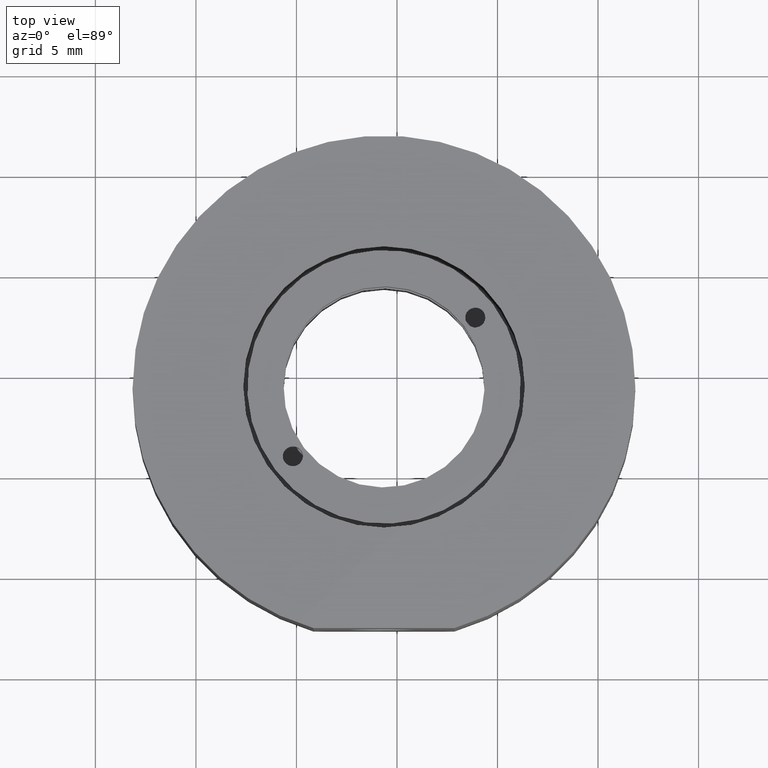
[diagram: clean part render]
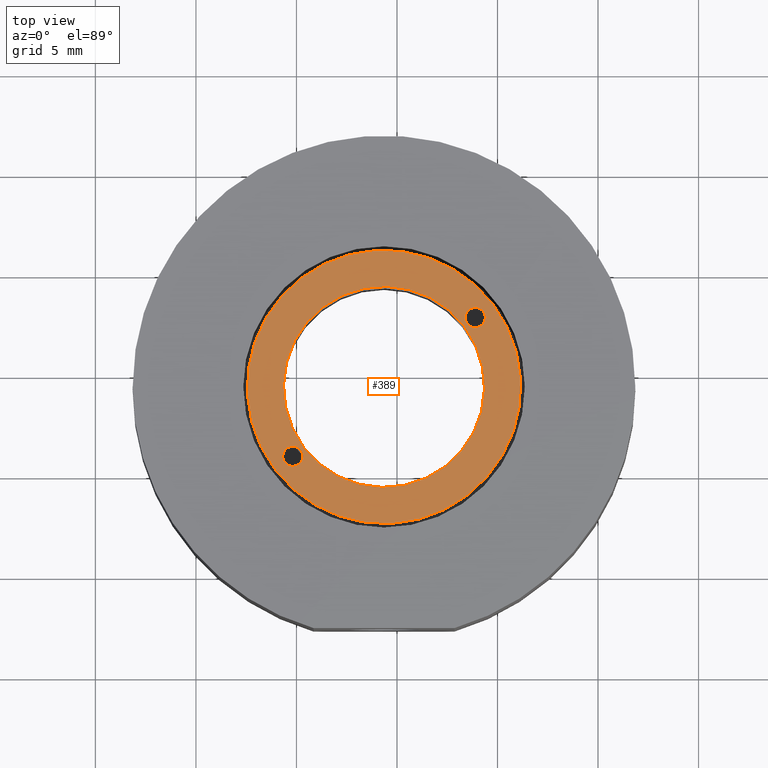
[diagram: same view with one face highlighted and labeled with its STEP entity id]
A machine part, top view. The second image highlights one B-rep face of the part: STEP entity #389.
In plain terms, the highlighted planar face has unit normal (0, 0, 1).
Its self-contained STEP definition (entity closure, byte-faithful):
#50 = EDGE_LOOP ( 'NONE', ( #513, #487 ) ) ;
#65 = EDGE_LOOP ( 'NONE', ( #182, #904 ) ) ;
#69 = DIRECTION ( 'NONE',  ( 0.0000000000000000000, 0.0000000000000000000, 1.000000000000000000 ) ) ;
#70 = AXIS2_PLACEMENT_3D ( 'NONE', #908, #151, #681 ) ;
#72 = DIRECTION ( 'NONE',  ( 0.0000000000000000000, 0.0000000000000000000, 1.000000000000000000 ) ) ;
#94 = CIRCLE ( 'NONE', #934, 5.000000000000012400 ) ;
#97 = VERTEX_POINT ( 'NONE', #198 ) ;
#136 = VERTEX_POINT ( 'NONE', #817 ) ;
#137 = VERTEX_POINT ( 'NONE', #514 ) ;
#144 = VERTEX_POINT ( 'NONE', #275 ) ;
#151 = DIRECTION ( 'NONE',  ( 0.0000000000000000000, 0.0000000000000000000, 1.000000000000000000 ) ) ;
#167 = CARTESIAN_POINT ( 'NONE',  ( -5.232985236543902000, 8.506333873004090100, 2.500000000000000400 ) ) ;
#179 = FACE_OUTER_BOUND ( 'NONE', #713, .T. ) ;
#182 = ORIENTED_EDGE ( 'NONE', *, *, #355, .F. ) ;
#198 = CARTESIAN_POINT ( 'NONE',  ( -14.78439415107425400, 1.241997169117729400, 2.500000000000000400 ) ) ;
#231 = DIRECTION ( 'NONE',  ( -0.7959507428775284300, -0.6053613919905287400, 0.0000000000000000000 ) ) ;
#256 = EDGE_CURVE ( 'NONE', #636, #144, #867, .T. ) ;
#270 = ORIENTED_EDGE ( 'NONE', *, *, #570, .T. ) ;
#272 = ORIENTED_EDGE ( 'NONE', *, *, #256, .T. ) ;
#275 = CARTESIAN_POINT ( 'NONE',  ( -16.05791533967828500, 0.2734189419328972300, 2.500000000000000400 ) ) ;
#278 = EDGE_CURVE ( 'NONE', #136, #97, #710, .T. ) ;
#290 = CARTESIAN_POINT ( 'NONE',  ( -6.108531053709175000, 7.840436341814509500, 2.500000000000000400 ) ) ;
#294 = DIRECTION ( 'NONE',  ( 0.0000000000000000000, 0.0000000000000000000, 1.000000000000000000 ) ) ;
#347 = CARTESIAN_POINT ( 'NONE',  ( -6.665696573723453300, 7.416683367421138800, 2.500000000000000400 ) ) ;
#349 = ORIENTED_EDGE ( 'NONE', *, *, #278, .F. ) ;
#355 = EDGE_CURVE ( 'NONE', #870, #137, #587, .T. ) ;
#367 = FACE_BOUND ( 'NONE', #50, .T. ) ;
#389 = ADVANCED_FACE ( 'NONE', ( #367, #509, #179, #608 ), #628, .T. ) ;
#402 = EDGE_CURVE ( 'NONE', #476, #727, #810, .T. ) ;
#406 = CIRCLE ( 'NONE', #70, 6.800000000000017600 ) ;
#462 = AXIS2_PLACEMENT_3D ( 'NONE', #679, #536, #231 ) ;
#467 = CARTESIAN_POINT ( 'NONE',  ( -6.108531053709175000, 7.840436341814509500, 2.500000000000000400 ) ) ;
#468 = DIRECTION ( 'NONE',  ( 0.0000000000000000000, 0.0000000000000000000, 1.000000000000000000 ) ) ;
#472 = DIRECTION ( 'NONE',  ( 0.7959507428775279800, 0.6053613919905293000, 0.0000000000000000000 ) ) ;
#476 = VERTEX_POINT ( 'NONE', #619 ) ;
#481 = EDGE_CURVE ( 'NONE', #97, #136, #902, .T. ) ;
#487 = ORIENTED_EDGE ( 'NONE', *, *, #402, .F. ) ;
#495 = CIRCLE ( 'NONE', #848, 0.5000000000000026600 ) ;
#502 = ORIENTED_EDGE ( 'NONE', *, *, #481, .F. ) ;
#505 = AXIS2_PLACEMENT_3D ( 'NONE', #540, #72, #903 ) ;
#509 = FACE_BOUND ( 'NONE', #699, .T. ) ;
#513 = ORIENTED_EDGE ( 'NONE', *, *, #966, .F. ) ;
#514 = CARTESIAN_POINT ( 'NONE',  ( -14.62520400249873700, 1.363069447515849600, 2.500000000000000400 ) ) ;
#536 = DIRECTION ( 'NONE',  ( 0.0000000000000000000, 0.0000000000000000000, 1.000000000000000000 ) ) ;
#540 = CARTESIAN_POINT ( 'NONE',  ( -15.18236952251302100, 0.9393164731224643600, 2.500000000000000400 ) ) ;
#549 = CARTESIAN_POINT ( 'NONE',  ( -10.64545028811109400, 4.389876407468493700, 2.500000000000000400 ) ) ;
#570 = EDGE_CURVE ( 'NONE', #144, #636, #406, .T. ) ;
#575 = AXIS2_PLACEMENT_3D ( 'NONE', #614, #294, #623 ) ;
#587 = CIRCLE ( 'NONE', #924, 5.000000000000012400 ) ;
#601 = AXIS2_PLACEMENT_3D ( 'NONE', #851, #468, #783 ) ;
#608 = FACE_BOUND ( 'NONE', #65, .T. ) ;
#614 = CARTESIAN_POINT ( 'NONE',  ( -15.18236952251302100, 0.9393164731224643600, 2.500000000000000400 ) ) ;
#619 = CARTESIAN_POINT ( 'NONE',  ( -5.710555682270410200, 8.143117037809775000, 2.500000000000000400 ) ) ;
#623 = DIRECTION ( 'NONE',  ( -0.7959507428775280900, -0.6053613919905294100, 0.0000000000000000000 ) ) ;
#628 = PLANE ( 'NONE',  #601 ) ;
#630 = DIRECTION ( 'NONE',  ( 0.0000000000000000000, 0.0000000000000000000, 1.000000000000000000 ) ) ;
#636 = VERTEX_POINT ( 'NONE', #167 ) ;
#664 = CARTESIAN_POINT ( 'NONE',  ( -10.64545028811109400, 4.389876407468493700, 2.500000000000000400 ) ) ;
#679 = CARTESIAN_POINT ( 'NONE',  ( -10.64545028811109400, 4.389876407468493700, 2.500000000000000400 ) ) ;
#681 = DIRECTION ( 'NONE',  ( -0.7959507428775284300, -0.6053613919905287400, 0.0000000000000000000 ) ) ;
#686 = AXIS2_PLACEMENT_3D ( 'NONE', #467, #858, #472 ) ;
#699 = EDGE_LOOP ( 'NONE', ( #349, #502 ) ) ;
#708 = CARTESIAN_POINT ( 'NONE',  ( -6.506506425147939900, 7.537755645819245800, 2.500000000000000400 ) ) ;
#710 = CIRCLE ( 'NONE', #575, 0.5000000000000014400 ) ;
#713 = EDGE_LOOP ( 'NONE', ( #272, #270 ) ) ;
#727 = VERTEX_POINT ( 'NONE', #708 ) ;
#738 = DIRECTION ( 'NONE',  ( -0.7959507428775284300, -0.6053613919905288500, 0.0000000000000000000 ) ) ;
#783 = DIRECTION ( 'NONE',  ( -0.7959507428775284300, -0.6053613919905288500, 0.0000000000000000000 ) ) ;
#810 = CIRCLE ( 'NONE', #686, 0.5000000000000026600 ) ;
#817 = CARTESIAN_POINT ( 'NONE',  ( -15.58034489395178600, 0.6366357771271987700, 2.500000000000000400 ) ) ;
#848 = AXIS2_PLACEMENT_3D ( 'NONE', #290, #69, #971 ) ;
#851 = CARTESIAN_POINT ( 'NONE',  ( -10.64545028811109400, 4.389876407468493700, 2.500000000000000400 ) ) ;
#858 = DIRECTION ( 'NONE',  ( 0.0000000000000000000, 0.0000000000000000000, 1.000000000000000000 ) ) ;
#867 = CIRCLE ( 'NONE', #462, 6.800000000000017600 ) ;
#870 = VERTEX_POINT ( 'NONE', #347 ) ;
#889 = EDGE_CURVE ( 'NONE', #137, #870, #94, .T. ) ;
#902 = CIRCLE ( 'NONE', #505, 0.5000000000000014400 ) ;
#903 = DIRECTION ( 'NONE',  ( -0.7959507428775280900, -0.6053613919905294100, 0.0000000000000000000 ) ) ;
#904 = ORIENTED_EDGE ( 'NONE', *, *, #889, .F. ) ;
#908 = CARTESIAN_POINT ( 'NONE',  ( -10.64545028811109400, 4.389876407468493700, 2.500000000000000400 ) ) ;
#924 = AXIS2_PLACEMENT_3D ( 'NONE', #549, #630, #926 ) ;
#926 = DIRECTION ( 'NONE',  ( -0.7959507428775284300, -0.6053613919905288500, 0.0000000000000000000 ) ) ;
#934 = AXIS2_PLACEMENT_3D ( 'NONE', #664, #950, #738 ) ;
#950 = DIRECTION ( 'NONE',  ( 0.0000000000000000000, 0.0000000000000000000, 1.000000000000000000 ) ) ;
#966 = EDGE_CURVE ( 'NONE', #727, #476, #495, .T. ) ;
#971 = DIRECTION ( 'NONE',  ( 0.7959507428775279800, 0.6053613919905293000, 0.0000000000000000000 ) ) ;